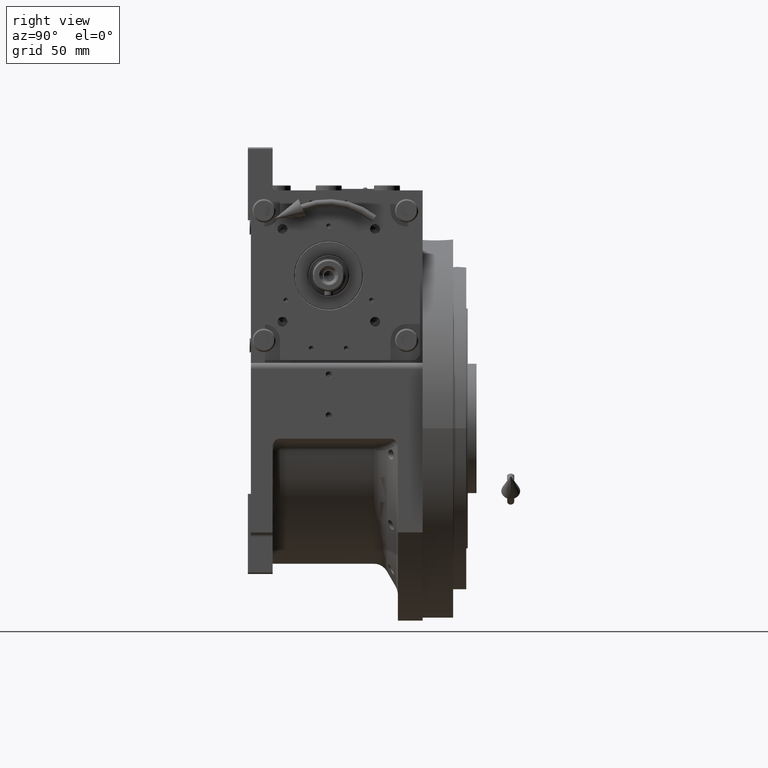
[diagram: clean part render]
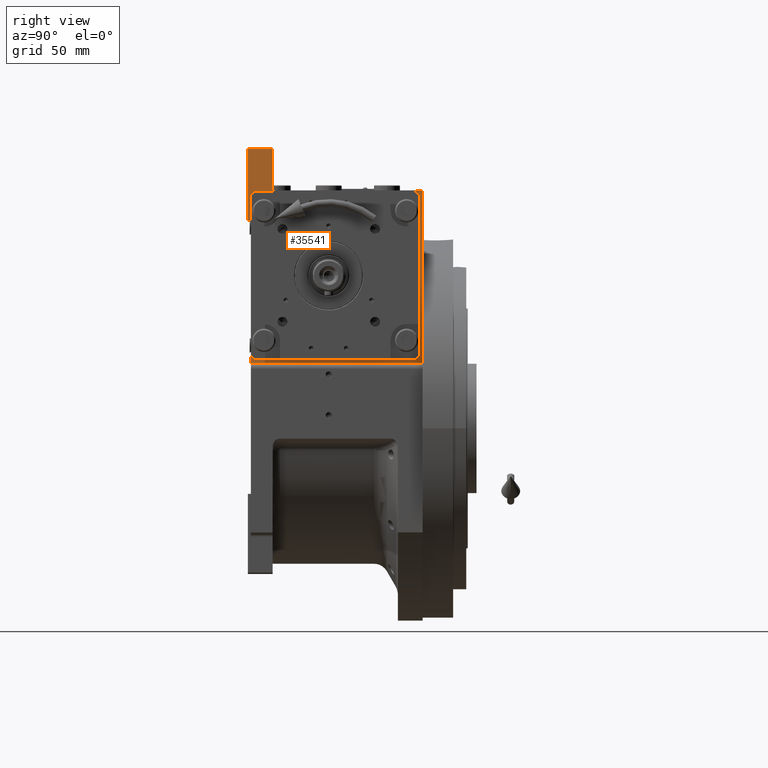
[diagram: same view with one face highlighted and labeled with its STEP entity id]
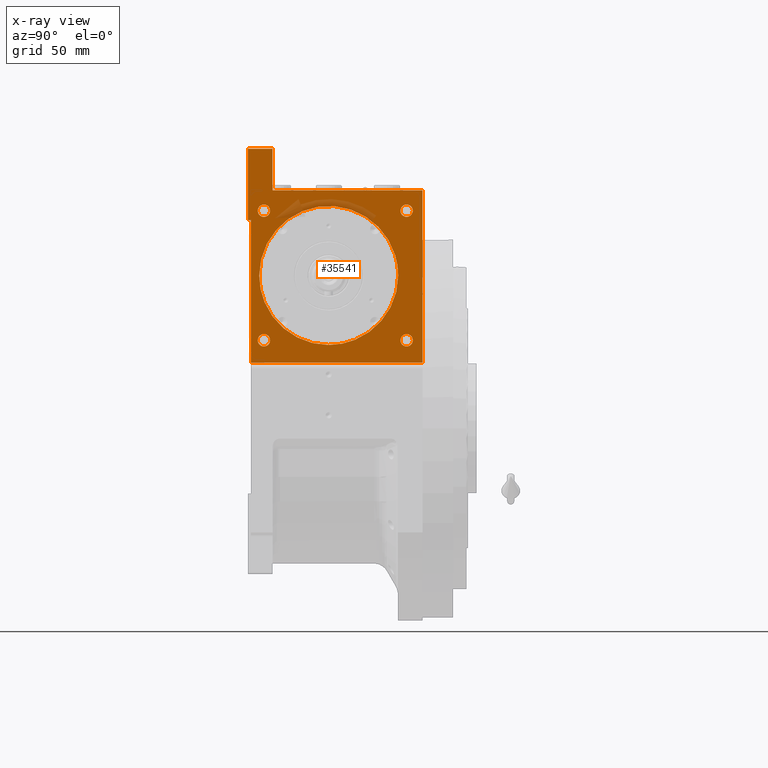
[diagram: x-ray of the same camera — body ghosted, the highlighted face saturated]
A machine part, right view. The second image highlights one B-rep face of the part: STEP entity #35541.
The next image is the same camera in x-ray: the body ghosted, the highlighted face saturated — about 5% of this face is hidden behind the body in this view.
In plain terms, the highlighted planar face has unit normal (1, 0, 0).
Its self-contained STEP definition (entity closure, byte-faithful):
#298 = CARTESIAN_POINT ( 'NONE',  ( 94.50002902998649290, -47.73200051640160524, 104.9999995094143941 ) ) ;
#855 = FACE_BOUND ( 'NONE', #30607, .T. ) ;
#985 = LINE ( 'NONE', #37556, #62464 ) ;
#1297 = ORIENTED_EDGE ( 'NONE', *, *, #29872, .T. ) ;
#1688 = CARTESIAN_POINT ( 'NONE',  ( 94.50000000000002842, -10.84864570284963570, 151.5091439793821166 ) ) ;
#1841 = CARTESIAN_POINT ( 'NONE',  ( 94.49999999999997158, 16.81929224879688078, 60.30195079329201491 ) ) ;
#1891 = PLANE ( 'NONE',  #16103 ) ;
#2178 = CARTESIAN_POINT ( 'NONE',  ( 94.50000000000002842, 46.85330562622292661, 95.88343428563784698 ) ) ;
#2280 = EDGE_CURVE ( 'NONE', #24214, #33702, #50708, .T. ) ;
#2377 = CARTESIAN_POINT ( 'NONE',  ( 94.50002902998649290, 47.73200051640160524, 105.0000004905855917 ) ) ;
#2512 = CARTESIAN_POINT ( 'NONE',  ( 94.50000000000001421, 46.88973784387872712, 96.07263559481400250 ) ) ;
#3201 = CARTESIAN_POINT ( 'NONE',  ( 94.50002902998649290, 47.73200051640160524, 105.0000004905855917 ) ) ;
#3403 = CARTESIAN_POINT ( 'NONE',  ( 94.50000000000001421, 46.77693454209784107, 114.4997301502931606 ) ) ;
#4267 = CARTESIAN_POINT ( 'NONE',  ( 94.50000000000001421, -41.36175665691211378, 81.12475189750924187 ) ) ;
#4447 = AXIS2_PLACEMENT_3D ( 'NONE', #37490, #47462, #41956 ) ;
#4871 = CARTESIAN_POINT ( 'NONE',  ( 94.49999999999997158, 2.441430477247521753E-09, 57.26804993192613580 ) ) ;
#5384 = LINE ( 'NONE', #46418, #11945 ) ;
#5897 = CARTESIAN_POINT ( 'NONE',  ( 94.50000000000000000, 53.50000000000000000, 60.50000000000000000 ) ) ;
#6308 = EDGE_CURVE ( 'NONE', #12846, #44465, #62830, .T. ) ;
#6335 = LINE ( 'NONE', #27722, #42608 ) ;
#6550 = VECTOR ( 'NONE', #36188, 1000.000000000000000 ) ;
#6666 = CARTESIAN_POINT ( 'NONE',  ( 94.50000000000004263, -46.73712315977163456, 95.30632675652324792 ) ) ;
#6870 = CARTESIAN_POINT ( 'NONE',  ( 94.50000000000001421, -46.96093276384281978, 113.5451099666630768 ) ) ;
#7023 = CARTESIAN_POINT ( 'NONE',  ( 94.50000000000004263, 23.87733482845262856, 63.63940558165556638 ) ) ;
#7207 = CARTESIAN_POINT ( 'NONE',  ( 94.49999999999998579, 35.96689989064976345, 136.5365117142805502 ) ) ;
#7563 = CARTESIAN_POINT ( 'NONE',  ( 94.49999999999998579, 21.16237729403218992, 147.8988567700706085 ) ) ;
#8794 = VERTEX_POINT ( 'NONE', #67679 ) ;
#8979 = DIRECTION ( 'NONE',  ( 0.000000000000000000, -1.000000000000000000, 0.000000000000000000 ) ) ;
#9114 = VERTEX_POINT ( 'NONE', #18405 ) ;
#9472 = AXIS2_PLACEMENT_3D ( 'NONE', #19747, #66282, #19073 ) ;
#9490 = DIRECTION ( 'NONE',  ( 1.000000000000000000, 0.000000000000000000, 0.000000000000000000 ) ) ;
#10207 = VERTEX_POINT ( 'NONE', #57401 ) ;
#10271 = ORIENTED_EDGE ( 'NONE', *, *, #31174, .F. ) ;
#10500 = EDGE_CURVE ( 'NONE', #44465, #21827, #34502, .T. ) ;
#10792 = CARTESIAN_POINT ( 'NONE',  ( 94.50000000000000000, -38.50000000000000000, 163.5000000000000000 ) ) ;
#10836 = DIRECTION ( 'NONE',  ( 0.000000000000000000, -1.000000000000000000, 0.000000000000000000 ) ) ;
#11006 = CARTESIAN_POINT ( 'NONE',  ( 94.50000000000001421, -29.07632421781054433, 142.8864719289248910 ) ) ;
#11127 = CARTESIAN_POINT ( 'NONE',  ( 94.50000000000004263, -47.72783331600020773, 101.8452739437081220 ) ) ;
#11142 = EDGE_CURVE ( 'NONE', #62191, #56354, #19676, .T. ) ;
#11343 = CARTESIAN_POINT ( 'NONE',  ( 94.49999999999998579, -45.29720689458082461, 120.3731964274075636 ) ) ;
#11622 = CARTESIAN_POINT ( 'NONE',  ( 94.50000000000000000, -44.50000000000000000, 149.5000000000000000 ) ) ;
#11945 = VECTOR ( 'NONE', #15721, 1000.000000000000000 ) ;
#11955 = CARTESIAN_POINT ( 'NONE',  ( 94.50000000000000000, 64.50000000000000000, 45.00000000000000000 ) ) ;
#12043 = CARTESIAN_POINT ( 'NONE',  ( 94.50000000000002842, -46.88973838509436831, 113.9273615626832310 ) ) ;
#12082 = EDGE_CURVE ( 'NONE', #28363, #30311, #39676, .T. ) ;
#12123 = AXIS2_PLACEMENT_3D ( 'NONE', #57695, #9490, #10836 ) ;
#12383 = CARTESIAN_POINT ( 'NONE',  ( 94.50000000000002842, 6.237423720597873533, 152.4265432514504255 ) ) ;
#12452 = DIRECTION ( 'NONE',  ( 1.000000000000000000, 0.000000000000000000, 0.000000000000000000 ) ) ;
#12590 = DIRECTION ( 'NONE',  ( 1.000000000000000000, 0.000000000000000000, 0.000000000000000000 ) ) ;
#12718 = CARTESIAN_POINT ( 'NONE',  ( 94.50000000000000000, 46.65593211933116891, 115.0772236312964623 ) ) ;
#12846 = VERTEX_POINT ( 'NONE', #31865 ) ;
#13158 = DIRECTION ( 'NONE',  ( 0.000000000000000000, -1.000000000000000000, 0.000000000000000000 ) ) ;
#14078 = CARTESIAN_POINT ( 'NONE',  ( 94.50000000000002842, 47.72783331463588752, 108.1547270768624287 ) ) ;
#14345 = CIRCLE ( 'NONE', #24251, 4.250000000000003553 ) ;
#14471 = CARTESIAN_POINT ( 'NONE',  ( 94.50000000000000000, -38.50000000000000000, 163.5000000000000000 ) ) ;
#14616 = CARTESIAN_POINT ( 'NONE',  ( 94.50000000000001421, -15.37029266404907801, 59.70173754115774045 ) ) ;
#14680 = EDGE_LOOP ( 'NONE', ( #46739, #63950, #48958 ) ) ;
#15721 = DIRECTION ( 'NONE',  ( 0.000000000000000000, 1.000000000000000000, 0.000000000000000000 ) ) ;
#16050 = CARTESIAN_POINT ( 'NONE',  ( 94.50000000000000000, -53.50000000000000000, 45.00000000000000000 ) ) ;
#16103 = AXIS2_PLACEMENT_3D ( 'NONE', #22956, #12590, #63962 ) ;
#16176 = CARTESIAN_POINT ( 'NONE',  ( 94.49999999999998579, -23.87734880834445406, 146.3605863259477360 ) ) ;
#16215 = VECTOR ( 'NONE', #30583, 1000.000000000000000 ) ;
#16528 = CARTESIAN_POINT ( 'NONE',  ( 94.50000000000000000, -44.50000000000000000, 60.50000000000000000 ) ) ;
#16872 = CARTESIAN_POINT ( 'NONE',  ( 94.49999999999998579, -19.71344138895207365, 148.4990602298104250 ) ) ;
#17057 = EDGE_LOOP ( 'NONE', ( #57897, #53676 ) ) ;
#17457 = B_SPLINE_CURVE_WITH_KNOTS ( 'NONE', 3,
 ( #40835, #61867, #25960, #57649, #14616, #40499, #35663, #31495, #46984, #61522, #35351, #56641, #4267, #41830, #25301, #41160, #21473, #48695, #63536, #58345, #6666, #53522, #31838, #11127, #38385 ),
 .UNSPECIFIED., .F., .F.,
 ( 4, 2, 2, 2, 2, 2, 2, 2, 1, 1, 1, 2, 2, 4 ),
 ( 0.5000001617682776622, 0.5625001415472432598, 0.6250001213262088573, 0.6875001011051744548, 0.7500000808841400524, 0.8125000606631056499, 0.8437500505525884487, 0.8750000404420710254, 0.9062500303315537131, 0.9218750252762951680, 0.9296875227486657289, 0.9335937714848507873, 0.9375000202210359568, 1.000000000000000000 ),
 .UNSPECIFIED. ) ;
#17590 = CARTESIAN_POINT ( 'NONE',  ( 94.50000000000001421, -46.85330619672767227, 114.1165627841894690 ) ) ;
#17666 = EDGE_CURVE ( 'NONE', #21827, #12846, #17457, .T. ) ;
#18000 = DIRECTION ( 'NONE',  ( 1.000000000000000000, 0.000000000000000000, 0.000000000000000000 ) ) ;
#18256 = CARTESIAN_POINT ( 'NONE',  ( 94.50000000000000000, 40.55871733949073388, 130.2145550460371055 ) ) ;
#18405 = CARTESIAN_POINT ( 'NONE',  ( 94.50000000000000000, -40.25000000000000000, 149.5000000000000000 ) ) ;
#18755 = CARTESIAN_POINT ( 'NONE',  ( 94.50000000000001421, 47.28038598748223365, 98.37237229436991015 ) ) ;
#19073 = DIRECTION ( 'NONE',  ( 0.000000000000000000, 1.000000000000000000, 0.000000000000000000 ) ) ;
#19475 = VERTEX_POINT ( 'NONE', #48626 ) ;
#19609 = CARTESIAN_POINT ( 'NONE',  ( 94.50000000000000000, -48.75000000000000000, 60.50000000000000000 ) ) ;
#19676 = LINE ( 'NONE', #14471, #6550 ) ;
#19747 = CARTESIAN_POINT ( 'NONE',  ( 94.50000000000000000, 53.50000000000000000, 149.5000000000000000 ) ) ;
#20659 = LINE ( 'NONE', #64074, #41568 ) ;
#20708 = EDGE_CURVE ( 'NONE', #28363, #19475, #6335, .T. ) ;
#21358 = CARTESIAN_POINT ( 'NONE',  ( 94.50000000000000000, 49.25000000000000000, 149.5000000000000000 ) ) ;
#21473 = CARTESIAN_POINT ( 'NONE',  ( 94.50000000000000000, -45.48632298075449398, 90.38317066534912669 ) ) ;
#21827 = VERTEX_POINT ( 'NONE', #48038 ) ;
#21900 = VECTOR ( 'NONE', #8979, 1000.000000000000000 ) ;
#21912 = FACE_BOUND ( 'NONE', #53587, .T. ) ;
#22059 = CARTESIAN_POINT ( 'NONE',  ( 94.49999999999998579, -47.06419029512668573, 112.9711300177251587 ) ) ;
#22265 = FACE_BOUND ( 'NONE', #14680, .T. ) ;
#22342 = DIRECTION ( 'NONE',  ( 1.000000000000000000, 0.000000000000000000, 0.000000000000000000 ) ) ;
#22399 = CARTESIAN_POINT ( 'NONE',  ( 94.49999999999998579, -42.90025256448343072, 126.1602118802010466 ) ) ;
#22746 = CARTESIAN_POINT ( 'NONE',  ( 94.49999999999998579, -6.239090720443885907, 152.4262792008547081 ) ) ;
#22956 = CARTESIAN_POINT ( 'NONE',  ( 94.50000000000000000, -53.50000000000000000, 163.5000000000000000 ) ) ;
#23119 = VERTEX_POINT ( 'NONE', #11955 ) ;
#23178 = AXIS2_PLACEMENT_3D ( 'NONE', #65567, #23860, #13158 ) ;
#23556 = CARTESIAN_POINT ( 'NONE',  ( 94.50000000000000000, 41.42954651933291643, 81.08876891139492216 ) ) ;
#23860 = DIRECTION ( 'NONE',  ( 1.000000000000000000, 0.000000000000000000, 0.000000000000000000 ) ) ;
#24214 = VERTEX_POINT ( 'NONE', #21358 ) ;
#24240 = CARTESIAN_POINT ( 'NONE',  ( 94.50000000000001421, 31.48735593817631440, 69.09218840239530834 ) ) ;
#24251 = AXIS2_PLACEMENT_3D ( 'NONE', #11622, #22342, #32682 ) ;
#25301 = CARTESIAN_POINT ( 'NONE',  ( 94.50000000000001421, -43.49982004002598757, 85.28742878773149982 ) ) ;
#25848 = ORIENTED_EDGE ( 'NONE', *, *, #2280, .F. ) ;
#25960 = CARTESIAN_POINT ( 'NONE',  ( 94.49999999999998579, -6.237446013218798768, 57.57345977182963281 ) ) ;
#26109 = EDGE_LOOP ( 'NONE', ( #10271, #55277, #59970, #27774, #1297, #32401, #34242, #61271 ) ) ;
#27031 = EDGE_CURVE ( 'NONE', #41045, #62042, #52864, .T. ) ;
#27274 = EDGE_CURVE ( 'NONE', #9114, #10207, #14345, .T. ) ;
#27374 = DIRECTION ( 'NONE',  ( 0.000000000000000000, 0.000000000000000000, -1.000000000000000000 ) ) ;
#27608 = CARTESIAN_POINT ( 'NONE',  ( 94.50000000000000000, -53.50000000000000000, 143.0000000000000000 ) ) ;
#27722 = CARTESIAN_POINT ( 'NONE',  ( 94.50000000000000000, -53.50000000000000000, 143.0000000000000000 ) ) ;
#27774 = ORIENTED_EDGE ( 'NONE', *, *, #20708, .T. ) ;
#27901 = CARTESIAN_POINT ( 'NONE',  ( 94.49999999999998579, -12.36484008962252013, 151.1295816532383469 ) ) ;
#28052 = CARTESIAN_POINT ( 'NONE',  ( 94.49999999999997158, 21.12659504030017388, 62.16907020540498507 ) ) ;
#28363 = VERTEX_POINT ( 'NONE', #27608 ) ;
#28598 = CARTESIAN_POINT ( 'NONE',  ( 94.50000000000000000, 12.38673605598693506, 151.2032043838612196 ) ) ;
#29146 = EDGE_CURVE ( 'NONE', #33702, #24214, #60110, .T. ) ;
#29269 = CARTESIAN_POINT ( 'NONE',  ( 94.50000000000001421, 41.36175263178343897, 128.8752551050370698 ) ) ;
#29427 = CARTESIAN_POINT ( 'NONE',  ( 94.50000000000000000, 32.64398005687659321, 70.14072194830714579 ) ) ;
#29492 = CARTESIAN_POINT ( 'NONE',  ( 94.50000000000000000, 57.75000000000000000, 60.50000000000000000 ) ) ;
#29872 = EDGE_CURVE ( 'NONE', #19475, #23119, #57399, .T. ) ;
#30222 = CARTESIAN_POINT ( 'NONE',  ( 94.50002902998649290, 47.73200051640160524, 105.0000004905855917 ) ) ;
#30311 = VERTEX_POINT ( 'NONE', #42888 ) ;
#30583 = DIRECTION ( 'NONE',  ( 0.000000000000000000, 1.000000000000000000, 0.000000000000000000 ) ) ;
#30607 = EDGE_LOOP ( 'NONE', ( #49752, #45675 ) ) ;
#30692 = VECTOR ( 'NONE', #48036, 1000.000000000000000 ) ;
#30707 = EDGE_CURVE ( 'NONE', #40426, #23119, #20659, .T. ) ;
#31174 = EDGE_CURVE ( 'NONE', #63454, #56354, #5384, .T. ) ;
#31495 = CARTESIAN_POINT ( 'NONE',  ( 94.50000000000004263, -29.12464612672441788, 67.05387679282655711 ) ) ;
#31838 = CARTESIAN_POINT ( 'NONE',  ( 94.50000000000002842, -47.42211195790402911, 98.74226693093883966 ) ) ;
#31865 = CARTESIAN_POINT ( 'NONE',  ( 94.50002902998649290, -47.73200051640160524, 104.9999995094143941 ) ) ;
#32397 = CARTESIAN_POINT ( 'NONE',  ( 94.49999999999998579, -32.64398926968704728, 139.8592693983637218 ) ) ;
#32401 = ORIENTED_EDGE ( 'NONE', *, *, #30707, .F. ) ;
#32682 = DIRECTION ( 'NONE',  ( 0.000000000000000000, 1.000000000000000000, 0.000000000000000000 ) ) ;
#33090 = CARTESIAN_POINT ( 'NONE',  ( 94.50000000000001421, -27.82096223767387855, 143.8172381393734724 ) ) ;
#33414 = CARTESIAN_POINT ( 'NONE',  ( 94.50000000000000000, 64.50000000000000000, 163.5000000000000000 ) ) ;
#33627 = FACE_OUTER_BOUND ( 'NONE', #26109, .T. ) ;
#33702 = VERTEX_POINT ( 'NONE', #51633 ) ;
#34110 = CARTESIAN_POINT ( 'NONE',  ( 94.50000000000000000, 44.69762350999993572, 121.8209206685492774 ) ) ;
#34242 = ORIENTED_EDGE ( 'NONE', *, *, #53985, .F. ) ;
#34257 = CARTESIAN_POINT ( 'NONE',  ( 94.50000000000000000, 47.61382513417159856, 101.0762535521649994 ) ) ;
#34502 = B_SPLINE_CURVE_WITH_KNOTS ( 'NONE', 3,
 ( #3201, #65951, #34257, #18755, #55243, #49389, #2512, #2178, #44582, #65265, #61102, #23556, #65604, #60768, #29427, #24240, #45267, #40100, #54235, #7023, #28052, #49049, #1841, #43915, #57251, #56911, #62799, #45597, #4871 ),
 .UNSPECIFIED., .F., .F.,
 ( 4, 1, 1, 1, 2, 2, 2, 2, 2, 2, 2, 2, 2, 2, 2, 4 ),
 ( 0.000000000000000000, 0.03125001011051850575, 0.04687501516577789740, 0.05468751769340761404, 0.05859376895722233358, 0.06250002022103706700, 0.1250000404420712752, 0.1875000606631054834, 0.2500000808841396638, 0.2812500909946568650, 0.3125001011051740663, 0.3437501112156912675, 0.3750001213262085797, 0.4062501314367258920, 0.4375001415472431487, 0.5000001617682776622 ),
 .UNSPECIFIED. ) ;
#35351 = CARTESIAN_POINT ( 'NONE',  ( 94.50000000000000000, -37.94597189097378731, 75.87525602512690170 ) ) ;
#35541 = ADVANCED_FACE ( 'NONE', ( #48077, #855, #21912, #42938, #22265, #33627 ), #1891, .T. ) ;
#35663 = CARTESIAN_POINT ( 'NONE',  ( 94.50000000000001421, -23.91245710907051958, 63.57103999155233964 ) ) ;
#36188 = DIRECTION ( 'NONE',  ( 0.000000000000000000, 0.000000000000000000, 1.000000000000000000 ) ) ;
#36514 = DIRECTION ( 'NONE',  ( 0.000000000000000000, 0.000000000000000000, -1.000000000000000000 ) ) ;
#37216 = CARTESIAN_POINT ( 'NONE',  ( 94.50000000000000000, -46.20227033397711125, 117.3881757174958267 ) ) ;
#37221 = ORIENTED_EDGE ( 'NONE', *, *, #29146, .F. ) ;
#37490 = CARTESIAN_POINT ( 'NONE',  ( 94.50000000000000000, 53.50000000000000000, 149.5000000000000000 ) ) ;
#37556 = CARTESIAN_POINT ( 'NONE',  ( 94.50000000000000000, -38.50000000000000000, 163.5000000000000000 ) ) ;
#37567 = DIRECTION ( 'NONE',  ( 1.000000000000000000, 0.000000000000000000, 0.000000000000000000 ) ) ;
#37997 = EDGE_CURVE ( 'NONE', #30311, #63454, #64597, .T. ) ;
#38061 = AXIS2_PLACEMENT_3D ( 'NONE', #16528, #37567, #48568 ) ;
#38385 = CARTESIAN_POINT ( 'NONE',  ( 94.50002902998649290, -47.73200051640160524, 104.9999995094143941 ) ) ;
#38611 = CARTESIAN_POINT ( 'NONE',  ( 94.50000000000000000, 3.134286932304600537, 152.7320901682747660 ) ) ;
#38934 = CARTESIAN_POINT ( 'NONE',  ( 94.49999999999998579, 37.94596572830571546, 134.1247521302458097 ) ) ;
#39348 = AXIS2_PLACEMENT_3D ( 'NONE', #48637, #12452, #65194 ) ;
#39676 = LINE ( 'NONE', #40351, #21900 ) ;
#39687 = CIRCLE ( 'NONE', #46262, 4.249999999999996447 ) ;
#40100 = CARTESIAN_POINT ( 'NONE',  ( 94.50000000000001421, 27.82095025443525316, 66.18275325780552976 ) ) ;
#40293 = CARTESIAN_POINT ( 'NONE',  ( 94.49999999999998579, 15.37027429707418946, 150.2982687831360806 ) ) ;
#40351 = CARTESIAN_POINT ( 'NONE',  ( 94.50000000000000000, -53.50000000000000000, 143.0000000000000000 ) ) ;
#40426 = VERTEX_POINT ( 'NONE', #33414 ) ;
#40440 = CARTESIAN_POINT ( 'NONE',  ( 94.50000000000000000, -55.50000000000000000, 192.0000000000000000 ) ) ;
#40499 = CARTESIAN_POINT ( 'NONE',  ( 94.50000000000000000, -21.16239265828103910, 62.10115087899649922 ) ) ;
#40583 = VERTEX_POINT ( 'NONE', #19609 ) ;
#40835 = CARTESIAN_POINT ( 'NONE',  ( 94.49999999999997158, 2.441430477247521753E-09, 57.26804993192613580 ) ) ;
#41045 = VERTEX_POINT ( 'NONE', #51866 ) ;
#41160 = CARTESIAN_POINT ( 'NONE',  ( 94.50000000000001421, -44.69762545219200689, 88.17908453790067824 ) ) ;
#41568 = VECTOR ( 'NONE', #36514, 1000.000000000000000 ) ;
#41645 = EDGE_LOOP ( 'NONE', ( #37221, #25848 ) ) ;
#41830 = CARTESIAN_POINT ( 'NONE',  ( 94.50000000000001421, -42.83206250368282042, 83.87515294781982789 ) ) ;
#41956 = DIRECTION ( 'NONE',  ( 0.000000000000000000, -1.000000000000000000, 0.000000000000000000 ) ) ;
#42380 = CARTESIAN_POINT ( 'NONE',  ( 94.49999999999995737, -47.72999623968265581, 106.5772107766920556 ) ) ;
#42608 = VECTOR ( 'NONE', #27374, 1000.000000000000000 ) ;
#42888 = CARTESIAN_POINT ( 'NONE',  ( 94.50000000000000000, -55.50000000000000000, 143.0000000000000000 ) ) ;
#42938 = FACE_BOUND ( 'NONE', #41645, .T. ) ;
#43081 = CARTESIAN_POINT ( 'NONE',  ( 94.50000000000000000, -25.21621916993132118, 145.5578495161473427 ) ) ;
#43257 = CARTESIAN_POINT ( 'NONE',  ( 94.50000000000000000, -38.50000000000000000, 192.0000000000000000 ) ) ;
#43418 = CARTESIAN_POINT ( 'NONE',  ( 94.49999999999998579, -21.12661042973962111, 147.8309221883753821 ) ) ;
#43771 = CARTESIAN_POINT ( 'NONE',  ( 94.50000000000005684, -3.134335612271394123, 152.7320107976826478 ) ) ;
#43915 = CARTESIAN_POINT ( 'NONE',  ( 94.50000000000000000, 15.34957133033136323, 59.77584693204870803 ) ) ;
#44465 = VERTEX_POINT ( 'NONE', #30222 ) ;
#44582 = CARTESIAN_POINT ( 'NONE',  ( 94.49999999999997158, 46.20226935162366999, 92.61182035792216993 ) ) ;
#45267 = CARTESIAN_POINT ( 'NONE',  ( 94.49999999999998579, 29.07631301229588772, 67.11351945345741399 ) ) ;
#45597 = CARTESIAN_POINT ( 'NONE',  ( 94.50000000000001421, 3.134312131669803492, 57.26798761924735004 ) ) ;
#45675 = ORIENTED_EDGE ( 'NONE', *, *, #56218, .F. ) ;
#46262 = AXIS2_PLACEMENT_3D ( 'NONE', #5897, #18000, #64864 ) ;
#46418 = CARTESIAN_POINT ( 'NONE',  ( 94.50000000000000000, -55.50000000000000000, 192.0000000000000000 ) ) ;
#46739 = ORIENTED_EDGE ( 'NONE', *, *, #10500, .T. ) ;
#46984 = CARTESIAN_POINT ( 'NONE',  ( 94.50000000000002842, -31.53651502292848718, 69.03334696024926131 ) ) ;
#47462 = DIRECTION ( 'NONE',  ( 1.000000000000000000, 0.000000000000000000, 0.000000000000000000 ) ) ;
#48036 = DIRECTION ( 'NONE',  ( 0.000000000000000000, 0.000000000000000000, 1.000000000000000000 ) ) ;
#48038 = CARTESIAN_POINT ( 'NONE',  ( 94.49999999999997158, 2.441430477247521753E-09, 57.26804993192613580 ) ) ;
#48077 = FACE_BOUND ( 'NONE', #17057, .T. ) ;
#48568 = DIRECTION ( 'NONE',  ( 0.000000000000000000, -1.000000000000000000, 0.000000000000000000 ) ) ;
#48570 = CARTESIAN_POINT ( 'NONE',  ( 94.50000000000002842, -41.42955056765840993, 128.9112239618229978 ) ) ;
#48626 = CARTESIAN_POINT ( 'NONE',  ( 94.50000000000000000, -53.50000000000000000, 45.00000000000000000 ) ) ;
#48637 = CARTESIAN_POINT ( 'NONE',  ( 94.50000000000000000, -44.50000000000000000, 60.50000000000000000 ) ) ;
#48695 = CARTESIAN_POINT ( 'NONE',  ( 94.50000000000004263, -46.21457116892727868, 93.01645703164334122 ) ) ;
#48887 = DIRECTION ( 'NONE',  ( 0.000000000000000000, 1.000000000000000000, 0.000000000000000000 ) ) ;
#48958 = ORIENTED_EDGE ( 'NONE', *, *, #6308, .T. ) ;
#49049 = CARTESIAN_POINT ( 'NONE',  ( 94.50000000000001421, 19.71342517831152819, 61.50093241170171154 ) ) ;
#49389 = CARTESIAN_POINT ( 'NONE',  ( 94.50000000000001421, 46.96093226852898539, 96.45488731061844589 ) ) ;
#49591 = CARTESIAN_POINT ( 'NONE',  ( 94.50000000000000000, 47.42211176008001416, 111.2577350768354165 ) ) ;
#49752 = ORIENTED_EDGE ( 'NONE', *, *, #27274, .F. ) ;
#50263 = CARTESIAN_POINT ( 'NONE',  ( 94.50000000000002842, 45.48632154210265099, 119.6168339079700900 ) ) ;
#50519 = EDGE_CURVE ( 'NONE', #40583, #8794, #53493, .T. ) ;
#50611 = CARTESIAN_POINT ( 'NONE',  ( 94.49999999999998579, 23.91244298728578954, 146.4289682555229888 ) ) ;
#50708 = CIRCLE ( 'NONE', #4447, 4.249999999999996447 ) ;
#51442 = ORIENTED_EDGE ( 'NONE', *, *, #27031, .F. ) ;
#51633 = CARTESIAN_POINT ( 'NONE',  ( 94.50000000000000000, 57.75000000000000000, 149.5000000000000000 ) ) ;
#51866 = CARTESIAN_POINT ( 'NONE',  ( 94.50000000000000000, 49.25000000000000000, 60.50000000000000000 ) ) ;
#52864 = CIRCLE ( 'NONE', #23178, 4.249999999999996447 ) ;
#53053 = CARTESIAN_POINT ( 'NONE',  ( 94.50000000000002842, -47.28038627691711326, 111.6276255858500264 ) ) ;
#53493 = CIRCLE ( 'NONE', #38061, 4.250000000000003553 ) ;
#53522 = CARTESIAN_POINT ( 'NONE',  ( 94.50000000000001421, -46.77693515594899765, 95.50027287093276129 ) ) ;
#53544 = EDGE_CURVE ( 'NONE', #8794, #40583, #60237, .T. ) ;
#53587 = EDGE_LOOP ( 'NONE', ( #57415, #51442 ) ) ;
#53676 = ORIENTED_EDGE ( 'NONE', *, *, #50519, .F. ) ;
#53910 = CARTESIAN_POINT ( 'NONE',  ( 94.50000000000000000, -55.50000000000000000, 143.0000000000000000 ) ) ;
#53936 = CIRCLE ( 'NONE', #12123, 4.250000000000003553 ) ;
#53985 = EDGE_CURVE ( 'NONE', #62191, #40426, #985, .T. ) ;
#54091 = CARTESIAN_POINT ( 'NONE',  ( 94.49999999999998579, -15.34958948715820171, 150.2241468849617831 ) ) ;
#54235 = CARTESIAN_POINT ( 'NONE',  ( 94.49999999999998579, 25.21620587127964441, 64.44214219213566253 ) ) ;
#54422 = CARTESIAN_POINT ( 'NONE',  ( 94.49999999999998579, 31.53650509354042342, 140.9666618489025325 ) ) ;
#54760 = CARTESIAN_POINT ( 'NONE',  ( 94.50000000000001421, 46.21457019352746443, 116.9835467631303061 ) ) ;
#55243 = CARTESIAN_POINT ( 'NONE',  ( 94.50000000000001421, 47.06418986637879698, 97.02886743962150717 ) ) ;
#55277 = ORIENTED_EDGE ( 'NONE', *, *, #37997, .F. ) ;
#56218 = EDGE_CURVE ( 'NONE', #10207, #9114, #53936, .T. ) ;
#56354 = VERTEX_POINT ( 'NONE', #43257 ) ;
#56641 = CARTESIAN_POINT ( 'NONE',  ( 94.49999999999998579, -40.55872186604148766, 79.78545226210235342 ) ) ;
#56822 = EDGE_CURVE ( 'NONE', #62042, #41045, #39687, .T. ) ;
#56911 = CARTESIAN_POINT ( 'NONE',  ( 94.50000000000002842, 10.84862539060499920, 58.49085127301931664 ) ) ;
#57251 = CARTESIAN_POINT ( 'NONE',  ( 94.50000000000001421, 12.36482058598397771, 58.87041310548522688 ) ) ;
#57399 = LINE ( 'NONE', #16050, #16215 ) ;
#57401 = CARTESIAN_POINT ( 'NONE',  ( 94.50000000000000000, -48.75000000000000000, 149.5000000000000000 ) ) ;
#57415 = ORIENTED_EDGE ( 'NONE', *, *, #56822, .F. ) ;
#57649 = CARTESIAN_POINT ( 'NONE',  ( 94.50000000000001421, -12.38675554343715035, 58.79680090455950392 ) ) ;
#57695 = CARTESIAN_POINT ( 'NONE',  ( 94.50000000000000000, -44.50000000000000000, 149.5000000000000000 ) ) ;
#57897 = ORIENTED_EDGE ( 'NONE', *, *, #53544, .F. ) ;
#58345 = CARTESIAN_POINT ( 'NONE',  ( 94.50000000000001421, -46.65593281485212884, 94.92277959098861118 ) ) ;
#59256 = CARTESIAN_POINT ( 'NONE',  ( 94.50000000000000000, -47.61382520901027249, 108.9237451846855720 ) ) ;
#59598 = CARTESIAN_POINT ( 'NONE',  ( 94.50000000000000000, -31.48736579410826053, 140.9078029306486428 ) ) ;
#59923 = CARTESIAN_POINT ( 'NONE',  ( 94.49999999999998579, 46.53071975606611232, 115.6514400430027507 ) ) ;
#59970 = ORIENTED_EDGE ( 'NONE', *, *, #12082, .F. ) ;
#60110 = CIRCLE ( 'NONE', #9472, 4.249999999999996447 ) ;
#60237 = CIRCLE ( 'NONE', #39348, 4.250000000000003553 ) ;
#60276 = CARTESIAN_POINT ( 'NONE',  ( 94.49999999999998579, 42.83205939349759461, 126.1248533971760821 ) ) ;
#60629 = CARTESIAN_POINT ( 'NONE',  ( 94.49999999999998579, 29.12463495349258835, 142.9461318624753119 ) ) ;
#60768 = CARTESIAN_POINT ( 'NONE',  ( 94.49999999999997158, 35.96716038025760298, 73.46391980037145686 ) ) ;
#61102 = CARTESIAN_POINT ( 'NONE',  ( 94.49999999999997158, 42.90024949848276492, 83.83978175205201921 ) ) ;
#61271 = ORIENTED_EDGE ( 'NONE', *, *, #11142, .T. ) ;
#61304 = CARTESIAN_POINT ( 'NONE',  ( 94.50000000000001421, 43.49981733180968746, 124.7125772324982194 ) ) ;
#61522 = CARTESIAN_POINT ( 'NONE',  ( 94.50000000000001421, -35.96690716199541527, 73.46349667635595893 ) ) ;
#61867 = CARTESIAN_POINT ( 'NONE',  ( 94.50000000000001421, -3.134310098658418919, 57.26791141421612252 ) ) ;
#62042 = VERTEX_POINT ( 'NONE', #29492 ) ;
#62191 = VERTEX_POINT ( 'NONE', #10792 ) ;
#62464 = VECTOR ( 'NONE', #48887, 1000.000000000000000 ) ;
#62799 = CARTESIAN_POINT ( 'NONE',  ( 94.50000000000001421, 6.239068707830892180, 57.57371783183215541 ) ) ;
#62830 = B_SPLINE_CURVE_WITH_KNOTS ( 'NONE', 3,
 ( #298, #42380, #59256, #53053, #22059, #6870, #12043, #17590, #37216, #11343, #22399, #48570, #64095, #63403, #32397, #59598, #11006, #33090, #43081, #16176, #43418, #16872, #64441, #54091, #27901, #1688, #22746, #43771, #38611, #12383, #28598, #40293, #7563, #50611, #60629, #54422, #7207, #38934, #18256, #29269, #60276, #61304, #34110, #50263, #54760, #59923, #12718, #66147, #3403, #49591, #14078, #2377 ),
 .UNSPECIFIED., .F., .F.,
 ( 4, 1, 1, 1, 2, 2, 2, 2, 2, 2, 2, 2, 2, 2, 2, 2, 2, 2, 2, 2, 2, 2, 2, 1, 1, 1, 2, 2, 4 ),
 ( 0.000000000000000000, 0.03124999999999837630, 0.04687499999999755751, 0.05468749999999714118, 0.05859374999999706485, 0.06249999999999698852, 0.1249999999999968359, 0.1874999999999966693, 0.2499999999999965028, 0.2812499999999966138, 0.3124999999999966693, 0.3437499999999967804, 0.3749999999999968914, 0.4062499999999970024, 0.4374999999999970579, 0.4999999999999973355, 0.5624999999999976685, 0.6249999999999978906, 0.6874999999999981126, 0.7499999999999983347, 0.8124999999999985567, 0.8437499999999985567, 0.8749999999999985567, 0.9062499999999986677, 0.9218749999999988898, 0.9296874999999988898, 0.9335937499999988898, 0.9374999999999988898, 1.000000000000000000 ),
 .UNSPECIFIED. ) ;
#63403 = CARTESIAN_POINT ( 'NONE',  ( 94.50000000000001421, -35.96716775871314553, 136.5360717020679431 ) ) ;
#63454 = VERTEX_POINT ( 'NONE', #40440 ) ;
#63536 = CARTESIAN_POINT ( 'NONE',  ( 94.50000000000002842, -46.53072053089280047, 94.34856335252489146 ) ) ;
#63950 = ORIENTED_EDGE ( 'NONE', *, *, #17666, .T. ) ;
#63962 = DIRECTION ( 'NONE',  ( 0.000000000000000000, 0.000000000000000000, -1.000000000000000000 ) ) ;
#64074 = CARTESIAN_POINT ( 'NONE',  ( 94.50000000000000000, 64.50000000000000000, 163.5000000000000000 ) ) ;
#64095 = CARTESIAN_POINT ( 'NONE',  ( 94.49999999999998579, -37.94613815524300549, 134.1246031955310514 ) ) ;
#64441 = CARTESIAN_POINT ( 'NONE',  ( 94.49999999999995737, -16.81930974702411419, 149.6980426002761817 ) ) ;
#64597 = LINE ( 'NONE', #53910, #30692 ) ;
#64864 = DIRECTION ( 'NONE',  ( 0.000000000000000000, 1.000000000000000000, 0.000000000000000000 ) ) ;
#65194 = DIRECTION ( 'NONE',  ( 0.000000000000000000, 1.000000000000000000, 0.000000000000000000 ) ) ;
#65265 = CARTESIAN_POINT ( 'NONE',  ( 94.49999999999998579, 45.29720530756664232, 89.62679870647322389 ) ) ;
#65567 = CARTESIAN_POINT ( 'NONE',  ( 94.50000000000000000, 53.50000000000000000, 60.50000000000000000 ) ) ;
#65604 = CARTESIAN_POINT ( 'NONE',  ( 94.49999999999997158, 37.94613206046589937, 75.87538875078313083 ) ) ;
#65951 = CARTESIAN_POINT ( 'NONE',  ( 94.50000000000002842, 47.72999623901807098, 103.4227887130724923 ) ) ;
#66147 = CARTESIAN_POINT ( 'NONE',  ( 94.50000000000001421, 46.73712251564245435, 114.6936763497919287 ) ) ;
#66282 = DIRECTION ( 'NONE',  ( 1.000000000000000000, 0.000000000000000000, 0.000000000000000000 ) ) ;
#67679 = CARTESIAN_POINT ( 'NONE',  ( 94.50000000000000000, -40.25000000000000000, 60.50000000000000000 ) ) ;